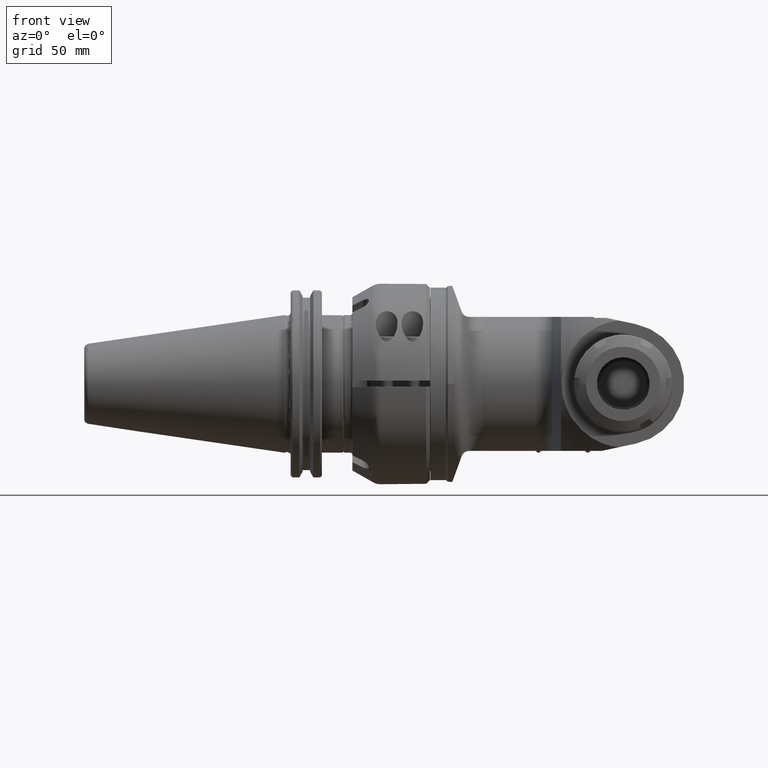
[diagram: clean part render]
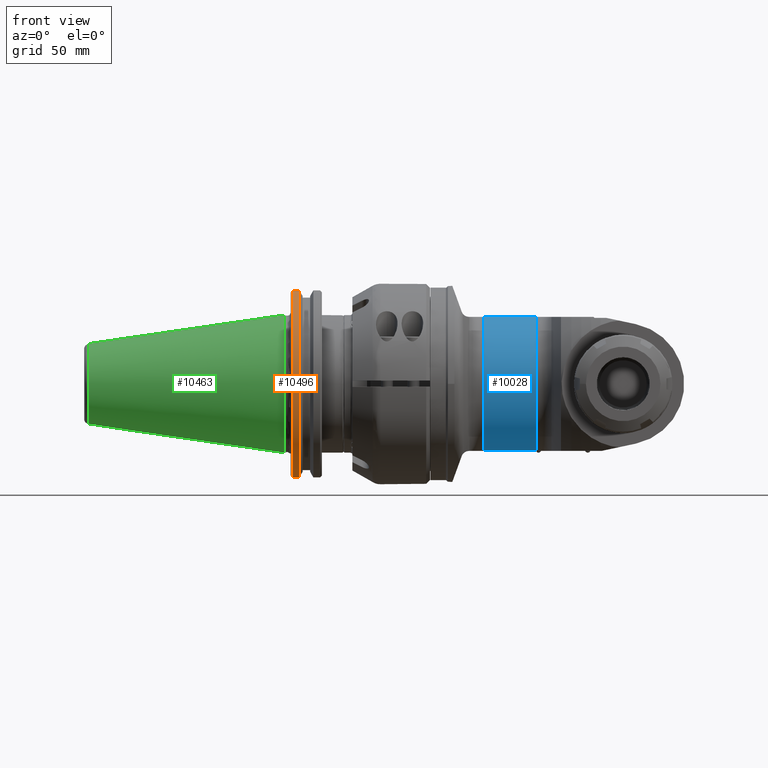
[diagram: same view with three faces highlighted in distinct colors, each labeled with its STEP entity id]
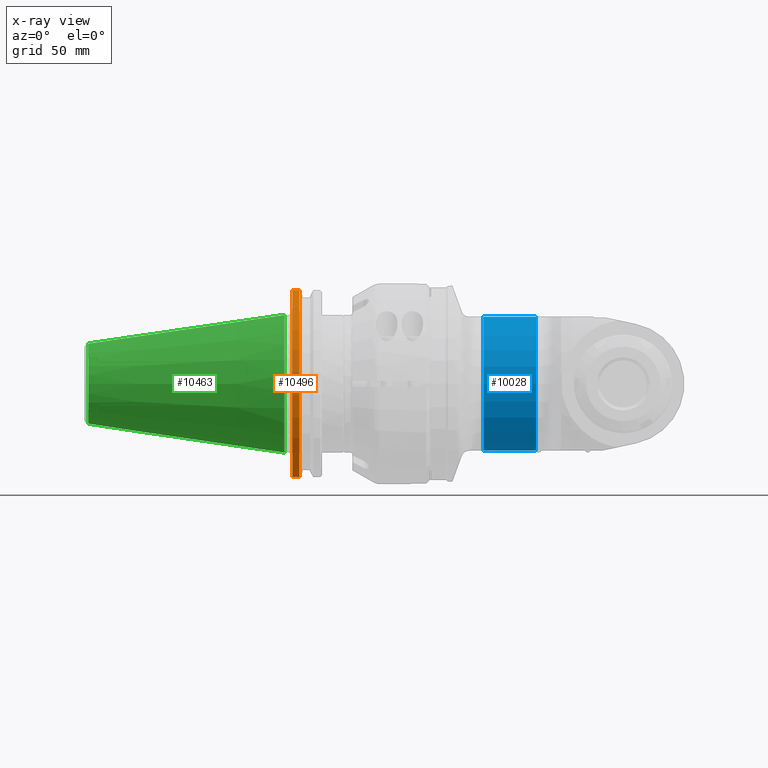
[diagram: x-ray of the same camera — body ghosted, the three highlighted faces saturated]
A machine part, front view with three faces highlighted in distinct colors.
The next image is the same camera in x-ray (body ghosted, the three faces saturated) — at least one of them is partly hidden behind the body in this view.
Their STEP definitions:

[orange] entity #10496 — the highlighted cylindrical surface (partial cylindrical patch) has radius 49.2125 mm, axis along (1, 0, 0).
#1296=LINE('',#63465,#2057);
#1297=LINE('',#63476,#2058);
#2057=VECTOR('',#13788,3.487333230926);
#2058=VECTOR('',#13797,3.487333230926);
#2281=CYLINDRICAL_SURFACE('',#11499,49.2125);
#2771=FACE_OUTER_BOUND('',#3372,.T.);
#3372=EDGE_LOOP('',(#9518,#9519,#9520,#9521));
#3782=CIRCLE('',#11387,49.2125);
#3845=CIRCLE('',#11498,49.2125);
#4835=VERTEX_POINT('',#63439);
#4845=VERTEX_POINT('',#63463);
#4846=VERTEX_POINT('',#63467);
#4848=VERTEX_POINT('',#63475);
#6346=EDGE_CURVE('',#4835,#4845,#1296,.T.);
#6349=EDGE_CURVE('',#4835,#4846,#3782,.T.);
#6350=EDGE_CURVE('',#4848,#4846,#1297,.T.);
#6476=EDGE_CURVE('',#4848,#4845,#3845,.T.);
#9518=ORIENTED_EDGE('',*,*,#6349,.F.);
#9519=ORIENTED_EDGE('',*,*,#6346,.T.);
#9520=ORIENTED_EDGE('',*,*,#6476,.F.);
#9521=ORIENTED_EDGE('',*,*,#6350,.T.);
#10496=ADVANCED_FACE('',(#2771),#2281,.T.);
#11387=AXIS2_PLACEMENT_3D('',#63473,#13793,#13794);
#11498=AXIS2_PLACEMENT_3D('',#63769,#14066,#14067);
#11499=AXIS2_PLACEMENT_3D('',#63770,#14068,#14069);
#13788=DIRECTION('',(-1.,1.731871563176E-14,1.47635892886964E-23));
#13793=DIRECTION('center_axis',(1.,0.,0.));
#13794=DIRECTION('ref_axis',(0.,-0.263225807274001,0.964734250654008));
#13797=DIRECTION('',(1.,4.48249110590783E-14,-1.42624716585384E-14));
#14066=DIRECTION('center_axis',(-1.,0.,0.));
#14067=DIRECTION('ref_axis',(0.,-0.263225805629198,-0.964734251102789));
#14068=DIRECTION('center_axis',(1.,0.,0.));
#14069=DIRECTION('ref_axis',(0.,-1.,-8.524644438195E-10));
#63439=CARTESIAN_POINT('',(-78.350166769074,-12.9540000404724,47.4769843103072));
#63463=CARTESIAN_POINT('',(-81.837500000001,-12.9540000404724,47.4769843103072));
#63465=CARTESIAN_POINT('',(-78.350166769074,-12.9540000404724,47.4769843103072));
#63467=CARTESIAN_POINT('',(-78.350166769075,-12.9539999595276,-47.4769843323928));
#63473=CARTESIAN_POINT('Origin',(-78.350166769075,0.,0.));
#63475=CARTESIAN_POINT('',(-81.8375,-12.9539999595276,-47.4769843323928));
#63476=CARTESIAN_POINT('',(-81.8375,-12.9539999595276,-47.4769843323928));
#63769=CARTESIAN_POINT('Origin',(-81.8375,0.,0.));
#63770=CARTESIAN_POINT('Origin',(-69.52764574358,0.,0.));

[blue] entity #10028 — the highlighted cylindrical surface (partial cylindrical patch) has radius 36 mm, axis along (-1, -0, 0).
#668=LINE('',#14357,#1429);
#669=LINE('',#14360,#1430);
#1429=VECTOR('',#11650,26.67897826015);
#1430=VECTOR('',#11653,26.67897826015);
#2178=CYLINDRICAL_SURFACE('',#10628,36.);
#2303=FACE_OUTER_BOUND('',#2833,.T.);
#2833=EDGE_LOOP('',(#6652,#6653,#6654,#6655));
#3436=CIRCLE('',#10629,36.);
#3437=CIRCLE('',#10630,36.);
#3895=VERTEX_POINT('',#14353);
#3896=VERTEX_POINT('',#14354);
#3897=VERTEX_POINT('',#14356);
#3898=VERTEX_POINT('',#14358);
#5041=EDGE_CURVE('',#3895,#3896,#3436,.T.);
#5042=EDGE_CURVE('',#3895,#3897,#668,.T.);
#5043=EDGE_CURVE('',#3898,#3897,#3437,.T.);
#5044=EDGE_CURVE('',#3898,#3896,#669,.T.);
#6652=ORIENTED_EDGE('',*,*,#5041,.F.);
#6653=ORIENTED_EDGE('',*,*,#5042,.T.);
#6654=ORIENTED_EDGE('',*,*,#5043,.F.);
#6655=ORIENTED_EDGE('',*,*,#5044,.T.);
#10028=ADVANCED_FACE('',(#2303),#2178,.T.);
#10628=AXIS2_PLACEMENT_3D('',#14352,#11646,#11647);
#10629=AXIS2_PLACEMENT_3D('',#14355,#11648,#11649);
#10630=AXIS2_PLACEMENT_3D('',#14359,#11651,#11652);
#11646=DIRECTION('center_axis',(-1.,0.,0.));
#11647=DIRECTION('ref_axis',(0.,-1.,0.));
#11648=DIRECTION('center_axis',(-1.,0.,0.));
#11649=DIRECTION('ref_axis',(0.,-1.,0.));
#11650=DIRECTION('',(1.,0.,0.));
#11651=DIRECTION('center_axis',(1.,0.,0.));
#11652=DIRECTION('ref_axis',(0.,-1.,0.));
#11653=DIRECTION('',(-1.,0.,0.));
#14352=CARTESIAN_POINT('Origin',(217.7095440971,0.,0.));
#14353=CARTESIAN_POINT('',(207.1879662404,-11.8321595662,-34.));
#14354=CARTESIAN_POINT('',(207.1879662404,-11.8321595662,34.));
#14355=CARTESIAN_POINT('Origin',(207.1879662404,0.,0.));
#14356=CARTESIAN_POINT('',(233.8669445005,-11.8321595662,-34.));
#14357=CARTESIAN_POINT('',(207.1879662404,-11.8321595662,-34.));
#14358=CARTESIAN_POINT('',(233.8669445005,-11.8321595662,34.));
#14359=CARTESIAN_POINT('Origin',(233.8669445005,0.,0.));
#14360=CARTESIAN_POINT('',(233.8669445005,-11.8321595662,34.));

[green] entity #10463 — the highlighted conical surface has half-angle 8.297 deg.
#137=CONICAL_SURFACE('',#11430,27.67265681028,0.144812411498922);
#1318=LINE('',#63589,#2079);
#2079=VECTOR('',#13902,27.67265681028);
#2738=FACE_OUTER_BOUND('',#3334,.T.);
#3334=EDGE_LOOP('',(#9352,#9353,#9354,#9355,#9356,#9357,#9358));
#3808=CIRCLE('',#11428,34.925);
#3809=CIRCLE('',#11429,34.925);
#3810=CIRCLE('',#11431,20.42031362057);
#3811=CIRCLE('',#11432,20.42031362057);
#3812=CIRCLE('',#11433,20.42031362057);
#4879=VERTEX_POINT('',#63582);
#4880=VERTEX_POINT('',#63583);
#4881=VERTEX_POINT('',#63588);
#4882=VERTEX_POINT('',#63590);
#4883=VERTEX_POINT('',#63592);
#6397=EDGE_CURVE('',#4879,#4880,#3808,.T.);
#6399=EDGE_CURVE('',#4880,#4879,#3809,.T.);
#6400=EDGE_CURVE('',#4879,#4881,#1318,.T.);
#6401=EDGE_CURVE('',#4882,#4881,#3810,.T.);
#6402=EDGE_CURVE('',#4883,#4882,#3811,.T.);
#6403=EDGE_CURVE('',#4881,#4883,#3812,.T.);
#9352=ORIENTED_EDGE('',*,*,#6397,.F.);
#9353=ORIENTED_EDGE('',*,*,#6400,.T.);
#9354=ORIENTED_EDGE('',*,*,#6401,.F.);
#9355=ORIENTED_EDGE('',*,*,#6402,.F.);
#9356=ORIENTED_EDGE('',*,*,#6403,.F.);
#9357=ORIENTED_EDGE('',*,*,#6400,.F.);
#9358=ORIENTED_EDGE('',*,*,#6399,.F.);
#10463=ADVANCED_FACE('',(#2738),#137,.T.);
#11428=AXIS2_PLACEMENT_3D('',#63584,#13895,#13896);
#11429=AXIS2_PLACEMENT_3D('',#63586,#13898,#13899);
#11430=AXIS2_PLACEMENT_3D('',#63587,#13900,#13901);
#11431=AXIS2_PLACEMENT_3D('',#63591,#13903,#13904);
#11432=AXIS2_PLACEMENT_3D('',#63593,#13905,#13906);
#11433=AXIS2_PLACEMENT_3D('',#63594,#13907,#13908);
#13895=DIRECTION('center_axis',(1.,0.,0.));
#13896=DIRECTION('ref_axis',(0.,8.524644438195E-10,-1.));
#13898=DIRECTION('center_axis',(1.,0.,0.));
#13899=DIRECTION('ref_axis',(0.,8.524644438195E-10,-1.));
#13900=DIRECTION('center_axis',(1.,0.,0.));
#13901=DIRECTION('ref_axis',(0.,8.524644438195E-10,-1.));
#13902=DIRECTION('',(-0.98953299358046,1.23016439845378E-10,-0.144306807239621));
#13903=DIRECTION('center_axis',(-1.,0.,0.));
#13904=DIRECTION('ref_axis',(0.,8.524644438195E-10,-1.));
#13905=DIRECTION('center_axis',(-1.,0.,0.));
#13906=DIRECTION('ref_axis',(0.,8.524644438195E-10,-1.));
#13907=DIRECTION('center_axis',(-1.,0.,0.));
#13908=DIRECTION('ref_axis',(0.,8.524644438195E-10,-1.));
#63582=CARTESIAN_POINT('',(-85.9999999999999,-2.9772320700396E-8,34.925));
#63583=CARTESIAN_POINT('',(-85.9999999999996,2.97723164233181E-8,-34.9250000000012));
#63584=CARTESIAN_POINT('Origin',(-85.9999999999999,0.,0.));
#63586=CARTESIAN_POINT('Origin',(-85.9999999999999,0.,0.));
#63587=CARTESIAN_POINT('Origin',(-135.73038350905,0.,0.));
#63588=CARTESIAN_POINT('',(-185.460767018099,-1.74075937939408E-8,20.4203136205638));
#63589=CARTESIAN_POINT('',(-135.73038350905,-2.35899593857063E-8,27.67265681028));
#63590=CARTESIAN_POINT('',(-185.4607670181,-20.42031362057,-1.7407591293179E-8));
#63591=CARTESIAN_POINT('Origin',(-185.4607670181,0.,0.));
#63592=CARTESIAN_POINT('',(-185.4607670181,20.42031362057,1.74075937939461E-8));
#63593=CARTESIAN_POINT('Origin',(-185.4607670181,0.,0.));
#63594=CARTESIAN_POINT('Origin',(-185.4607670181,0.,0.));